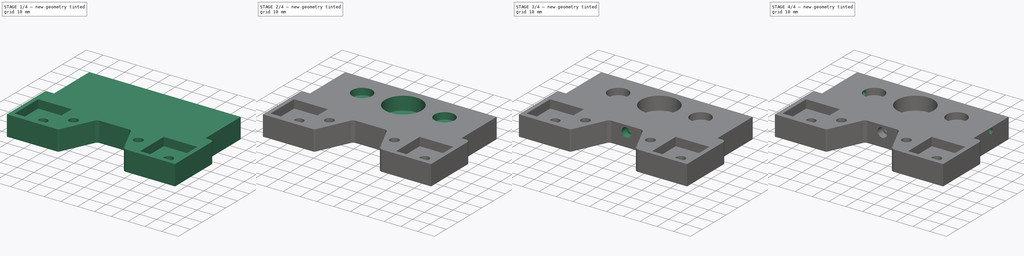
[diagram: build sequence overview — one tinted view per stage of 4, left to right]
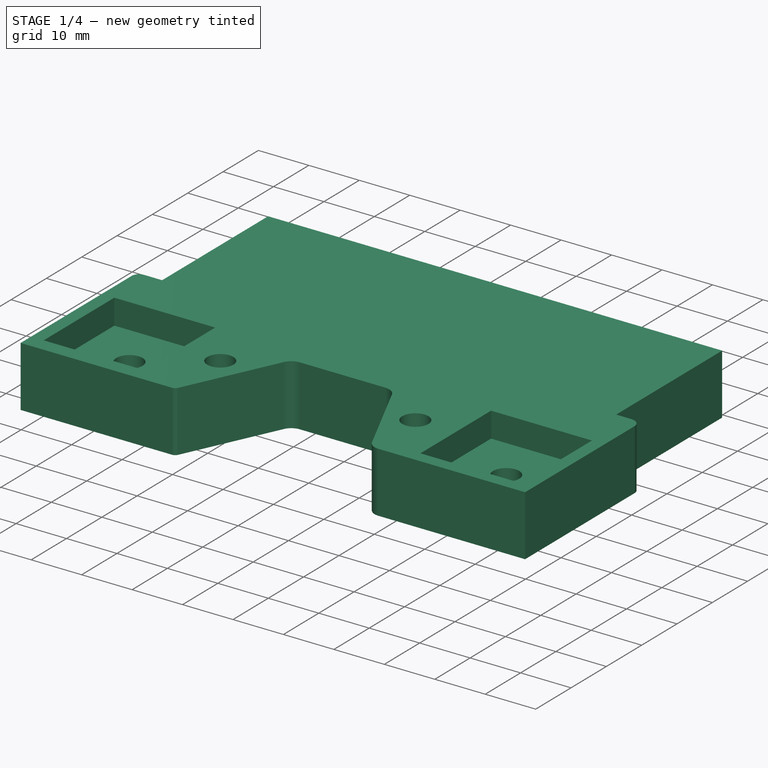
[diagram: stage 1 of 4 — iso view after this stage's code; geometry added in this stage tinted green]
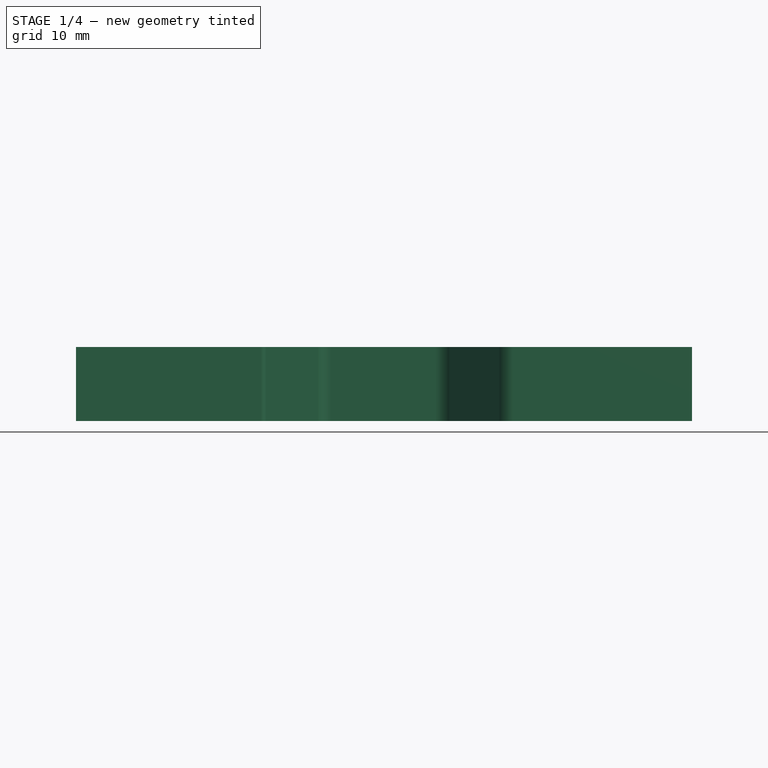
[diagram: stage 1 of 4 — front view after this stage's code; geometry added in this stage tinted green]
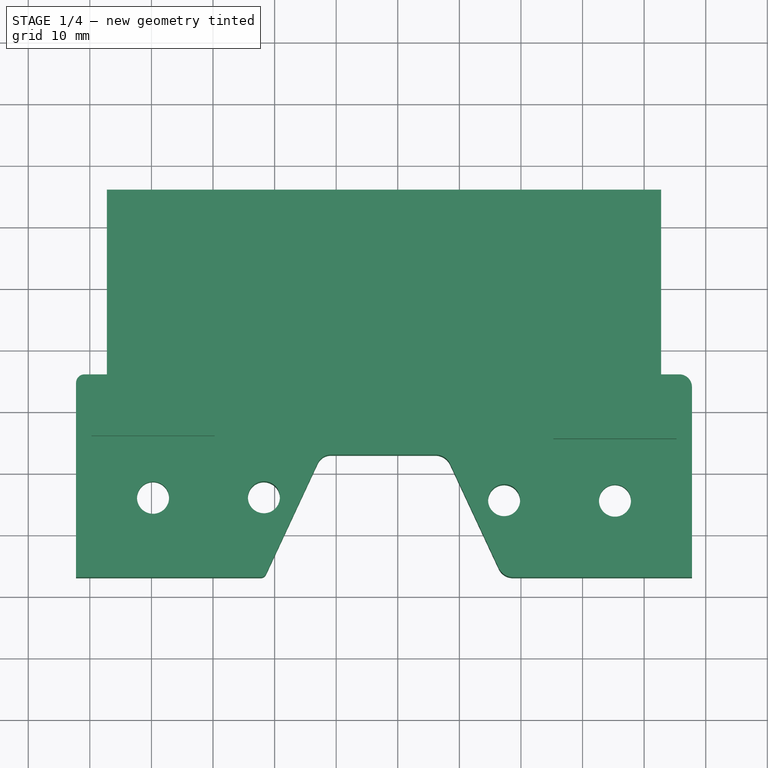
[diagram: stage 1 of 4 — top view after this stage's code; geometry added in this stage tinted green]
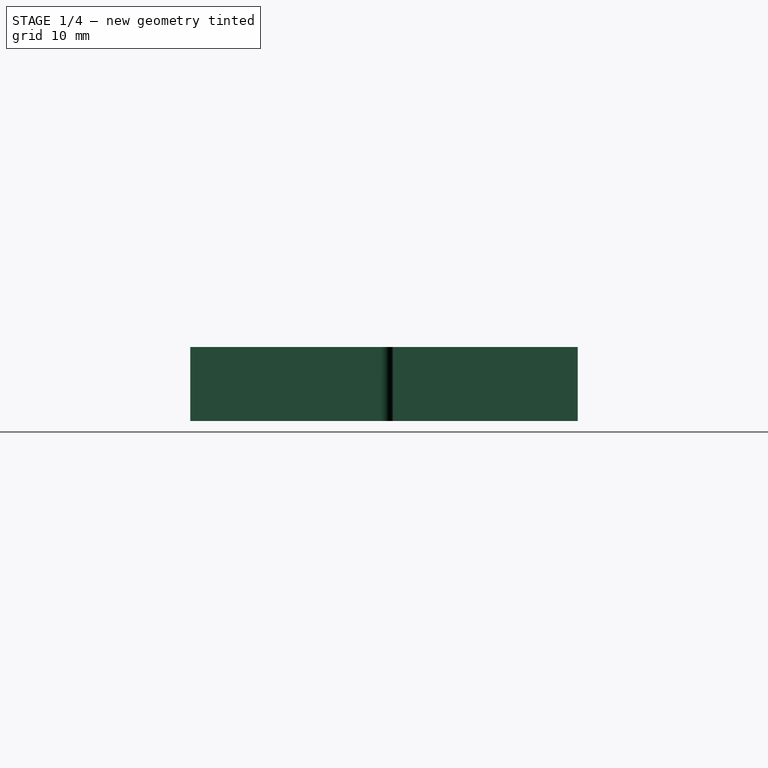
[diagram: stage 1 of 4 — right view after this stage's code; geometry added in this stage tinted green]
FCSTD DOCUMENT  (FreeCAD 0.18R4 (GitTag))
Label: support-y-buttom-v2
License: All rights reserved
LicenseURL: http://en.wikipedia.org/wiki/All_rights_reserved
objects: Sketcher::SketchObject×10, PartDesign::Pocket×9, PartDesign::Pad×1, PartDesign::Body×1
note: 31 computed .brp shape members not serialized (recipe doc carries the construction recipe); baked Part::Feature solids carry a one-line shape summary decoded from their .brp

FEATURE [Sketcher::SketchObject] Sketch
  MapMode = 5
  Support = -> [XY_Plane]
  sketch-geometry (36):
    g0: LineSegment StartX=-57.2375 StartY=55.9782 StartZ=0 EndX=32.7625 EndY=55.9782 EndZ=0
    g1: LineSegment StartX=32.7625 StartY=55.9782 StartZ=0 EndX=32.7625 EndY=25.9782 EndZ=0
    g2: LineSegment StartX=-57.2375 StartY=25.9782 StartZ=0 EndX=-57.2375 EndY=55.9782 EndZ=0
    g3: LineSegment [constr] StartX=-59.7375 StartY=16.0237 StartZ=0 EndX=-39.7375 EndY=16.0237 EndZ=0
    g4: LineSegment [constr] StartX=-39.7375 StartY=16.0237 StartZ=0 EndX=-39.7375 EndY=-3.97627 EndZ=0
    g5: LineSegment [constr] StartX=-39.7375 StartY=-3.97627 StartZ=0 EndX=-59.7375 EndY=-3.97627 EndZ=0
    g6: LineSegment [constr] StartX=-59.7375 StartY=-3.97627 StartZ=0 EndX=-59.7375 EndY=16.0237 EndZ=0
    g7: LineSegment [constr] StartX=15.2625 StartY=15.5512 StartZ=0 EndX=35.2625 EndY=15.5512 EndZ=0
    g8: LineSegment [constr] StartX=35.2625 StartY=15.5512 StartZ=0 EndX=35.2625 EndY=-4.44881 EndZ=0
    g9: LineSegment [constr] StartX=35.2625 StartY=-4.44881 StartZ=0 EndX=15.2625 EndY=-4.44881 EndZ=0
    g10: LineSegment [constr] StartX=15.2625 StartY=-4.44881 StartZ=0 EndX=15.2625 EndY=15.5512 EndZ=0
    g11: Circle CenterX=-49.7375 CenterY=6.02373 CenterZ=0 NormalX=0 NormalY=0 NormalZ=1 AngleXU=0 Radius=2.6
    g12: Circle CenterX=-31.7375 CenterY=6.02373 CenterZ=0 NormalX=0 NormalY=0 NormalZ=1 AngleXU=0 Radius=2.6
    g13: Circle CenterX=25.2625 CenterY=5.55119 CenterZ=0 NormalX=0 NormalY=0 NormalZ=1 AngleXU=0 Radius=2.6
    g14: Circle CenterX=7.26254 CenterY=5.55119 CenterZ=0 NormalX=0 NormalY=0 NormalZ=1 AngleXU=0 Radius=2.6
    g15: Circle [constr] CenterX=-12.2375 CenterY=40.9782 CenterZ=0 NormalX=0 NormalY=0 NormalZ=1 AngleXU=0 Radius=10.85
    g16: Circle [constr] CenterX=-36.7375 CenterY=40.9782 CenterZ=0 NormalX=0 NormalY=0 NormalZ=1 AngleXU=0 Radius=5.95
    g17: Circle [constr] CenterX=12.2625 CenterY=40.9782 CenterZ=0 NormalX=0 NormalY=0 NormalZ=1 AngleXU=0 Radius=5.95
    g18: LineSegment StartX=37.7625 StartY=23.9417 StartZ=0 EndX=37.7625 EndY=20.9782 EndZ=0
    g19: LineSegment StartX=-62.2375 StartY=17.4077 StartZ=0 EndX=-62.2375 EndY=24.5902 EndZ=0
    g20: LineSegment StartX=-60.8495 StartY=25.9782 StartZ=0 EndX=-57.2375 EndY=25.9782 EndZ=0
    g21: LineSegment StartX=32.7625 StartY=25.9782 StartZ=0 EndX=35.726 EndY=25.9782 EndZ=0
    g22: LineSegment StartX=-62.2375 StartY=17.4077 StartZ=0 EndX=-62.2375 EndY=-6.94881 EndZ=0
    g23: LineSegment StartX=-62.2375 StartY=-6.94881 StartZ=0 EndX=-32.2375 EndY=-6.94881 EndZ=0
    g24: LineSegment StartX=-31.3916 StartY=-6.40992 StartZ=0 EndX=-23.0034 EndY=11.5786 EndZ=0
    g25: LineSegment StartX=-20.8522 StartY=12.9491 StartZ=0 EndX=-3.89412 EndY=12.9491 EndZ=0
    g26: LineSegment StartX=-1.49691 StartY=11.4219 StartZ=0 EndX=6.36882 EndY=-5.44622 EndZ=0
    g27: LineSegment StartX=8.7274 StartY=-6.94881 StartZ=0 EndX=37.7625 EndY=-6.94881 EndZ=0
    g28: LineSegment StartX=37.7625 StartY=-6.94881 StartZ=0 EndX=37.7625 EndY=20.9782 EndZ=0
    g29: LineSegment [constr] StartX=-62.2375 StartY=-6.94881 StartZ=0 EndX=47.6711 EndY=-6.94881 EndZ=0
    g30: ArcOfCircle CenterX=-32.2375 CenterY=-6.01548 CenterZ=0 NormalX=0 NormalY=0 NormalZ=1 AngleXU=0 Radius=0.933329 StartAngle=4.71239 EndAngle=5.84685
    g31: ArcOfCircle CenterX=-20.8522 CenterY=10.5755 CenterZ=0 NormalX=0 NormalY=0 NormalZ=1 AngleXU=0 Radius=2.3736 StartAngle=1.5708 EndAngle=2.70526
    g32: ArcOfCircle CenterX=-3.89412 CenterY=10.304 CenterZ=0 NormalX=0 NormalY=0 NormalZ=1 AngleXU=0 Radius=2.64503 StartAngle=0.436332 EndAngle=1.5708
    g33: ArcOfCircle CenterX=8.7274 CenterY=-4.3464 CenterZ=0 NormalX=0 NormalY=0 NormalZ=1 AngleXU=0 Radius=2.60241 StartAngle=3.57792 EndAngle=4.71239
    g34: ArcOfCircle CenterX=35.726 CenterY=23.9417 CenterZ=0 NormalX=0 NormalY=0 NormalZ=1 AngleXU=0 Radius=2.03655 StartAngle=0 EndAngle=1.5708
    g35: ArcOfCircle CenterX=-60.8495 CenterY=24.5902 CenterZ=0 NormalX=0 NormalY=0 NormalZ=1 AngleXU=0 Radius=1.38797 StartAngle=1.5708 EndAngle=3.14159
  constraints (84):
    c: Coincident(g0,g1)
    c: Coincident(g2,g0)
    c: Horizontal(g0)
    c: Vertical(g1)
    c: Vertical(g2)
    c: DistanceX(g0,g0) = 90
    c: DistanceY(g1,g1) = 30
    c: Coincident(g3,g4)
    c: Coincident(g4,g5)
    c: Coincident(g5,g6)
    c: Coincident(g6,g3)
    c: Horizontal(g3)
    c: Horizontal(g5)
    c: Vertical(g4)
    c: Vertical(g6)
    c: Coincident(g7,g8)
    c: Coincident(g8,g9)
    c: Coincident(g9,g10)
    c: Coincident(g10,g7)
    c: Horizontal(g7)
    c: Horizontal(g9)
    c: Vertical(g8)
    c: Vertical(g10)
    c: Equal(g3,g4)
    c: Equal(g4,g7)
    c: Equal(g7,g8)
    c: DistanceY(g8,g8) = 20
    c: Equal(g11,g13)
    c: DistanceY(g11,g3) = 10
    c: DistanceY(g13,g7) = 10
    c: DistanceX(g3,g11) = 10
    c: DistanceX(g7,g13) = 10
    c: DistanceX(g3,g12) = 8
    c: Diameter(g11) = 5.2
    c: DistanceY(g12,g11) = 0
    c: DistanceY(g13,g14) = 0
    c: Equal(g14,g11)
    c: DistanceX(g0,g15) = 45
    c: DistanceY(g15,g0) = 15
    c: DistanceY(g16,g0) = 15
    c: DistanceY(g17,g0) = 15
    c: DistanceX(g16,g15) = 24.5
    c: DistanceX(g15,g17) = 24.5
    c: Equal(g16,g17)
    c: Diameter(g16) = 11.9
    c: Diameter(g15) = 21.7
    c: Vertical(g18)
    c: Vertical(g19)
    c: DistanceX(g19,g18) = 100
    c: Coincident(g20,g2)
    c: Coincident(g21,g1)
    c: Horizontal(g21)
    c: DistanceX(g7,g18) = 2.5
    c: DistanceX(g14,g7) = 8
    c: Coincident(g22,g23)
    c: Coincident(g27,g28)
    c: Coincident(g28,g18)
    c: Vertical(g22)
    c: Vertical(g28)
    c: Horizontal(g27)
    c: Horizontal(g23)
    c: DistanceY(g27,g8) = 2.5
    c: Equal(g23,g2)
    c: Equal(g2,g1)
    c: Horizontal(g25)
    c: Coincident(g22,g19)
    c: Angle(g24,g23) = 2.00713
    c: Angle(g27,g26) = 2.00713
    c: DistanceX(g19,g3) = 2.5
    c: Horizontal(g29)
    c: Tangent(g23,g30) = -1.5708
    c: Tangent(g24,g30) = -1.5708
    c: Tangent(g24,g31) = 1.5708
    c: Tangent(g25,g31) = 1.5708
    c: Tangent(g25,g32) = 1.5708
    c: Tangent(g26,g32) = 1.5708
    c: Tangent(g26,g33) = -1.5708
    c: Tangent(g27,g33) = -1.5708
    c: PointOnObject(g27,g29)
    c: Coincident(g29,g22)
    c: Tangent(g21,g34) = 1.5708
    c: Tangent(g18,g34) = 1.5708
    c: Tangent(g20,g35) = 1.5708
    c: Tangent(g19,g35) = 1.5708
FEATURE [PartDesign::Pad] Pad
  Length = 12
  Length2 = 100
  Profile = -> Sketch
  Type = 0
FEATURE [Sketcher::SketchObject] Sketch001
  ExternalGeometry = -> [Pad]
  MapMode = 5
  Placement = pos=(0,0,12) rot=(0,0,1;0rad)
  Support = -> [Pad]
  sketch-geometry (8):
    g0: LineSegment StartX=-59.7375 StartY=16.0237 StartZ=0 EndX=-39.7375 EndY=16.0237 EndZ=0
    g1: LineSegment StartX=-39.7375 StartY=16.0237 StartZ=0 EndX=-39.7375 EndY=-3.97627 EndZ=0
    g2: LineSegment StartX=-39.7375 StartY=-3.97627 StartZ=0 EndX=-59.7375 EndY=-3.97627 EndZ=0
    g3: LineSegment StartX=-59.7375 StartY=-3.97627 StartZ=0 EndX=-59.7375 EndY=16.0237 EndZ=0
    g4: LineSegment StartX=15.2625 StartY=15.5512 StartZ=0 EndX=35.2625 EndY=15.5512 EndZ=0
    g5: LineSegment StartX=35.2625 StartY=15.5512 StartZ=0 EndX=35.2625 EndY=-4.44881 EndZ=0
    g6: LineSegment StartX=35.2625 StartY=-4.44881 StartZ=0 EndX=15.2625 EndY=-4.44881 EndZ=0
    g7: LineSegment StartX=15.2625 StartY=-4.44881 StartZ=0 EndX=15.2625 EndY=15.5512 EndZ=0
  constraints (22):
    c: Coincident(g0,g1)
    c: Coincident(g1,g2)
    c: Coincident(g2,g3)
    c: Coincident(g3,g0)
    c: Horizontal(g0)
    c: Horizontal(g2)
    c: Vertical(g1)
    c: Vertical(g3)
    c: Coincident(g4,g5)
    c: Coincident(g5,g6)
    c: Coincident(g6,g7)
    c: Coincident(g7,g4)
    c: Horizontal(g4)
    c: Horizontal(g6)
    c: Vertical(g5)
    c: Vertical(g7)
    c: Equal(g0,g1)
    c: Equal(g1,g4)
    c: Equal(g4,g5)
    c: DistanceY(g5,g5) = 20
    c: Symmetric(g2,g0,g-3)
    c: Symmetric(g5,g4,g-4)
FEATURE [PartDesign::Pocket] Pocket
  BaseFeature = -> Pad
  Length = 5
  Length2 = 100
  Profile = -> Sketch001
  Type = 0
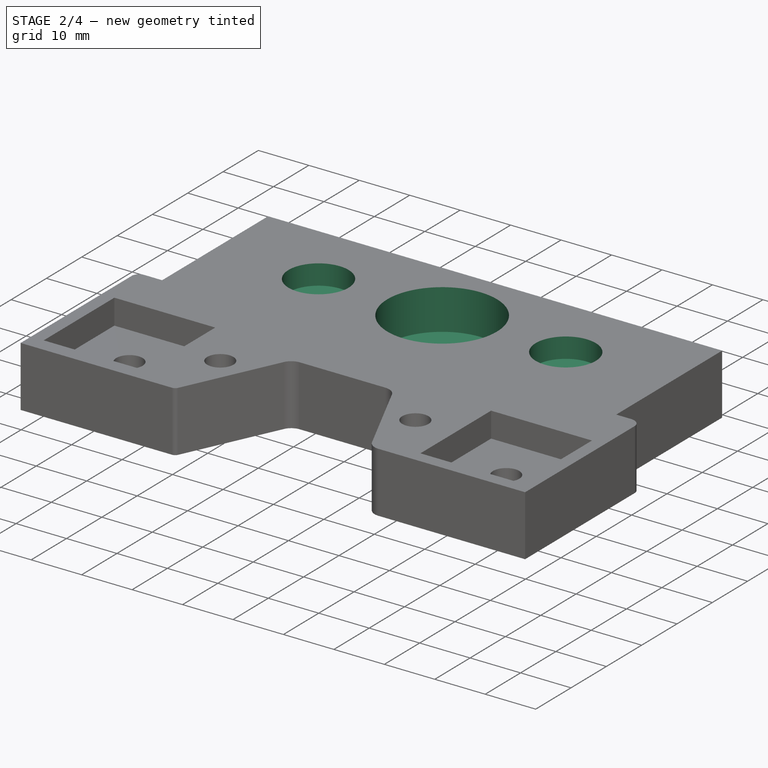
[diagram: stage 2 of 4 — iso view after this stage's code; geometry added in this stage tinted green]
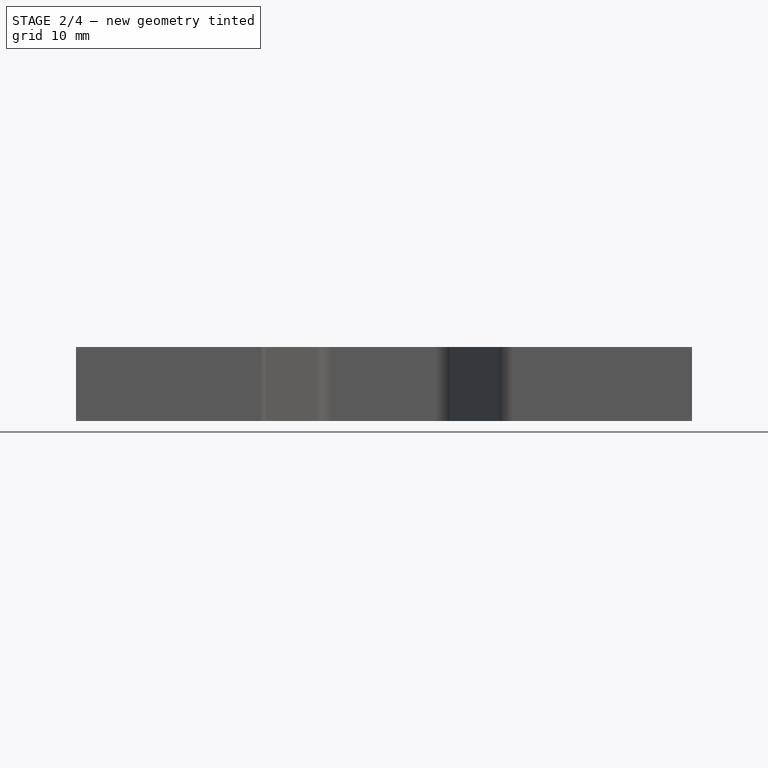
[diagram: stage 2 of 4 — front view after this stage's code; geometry added in this stage tinted green]
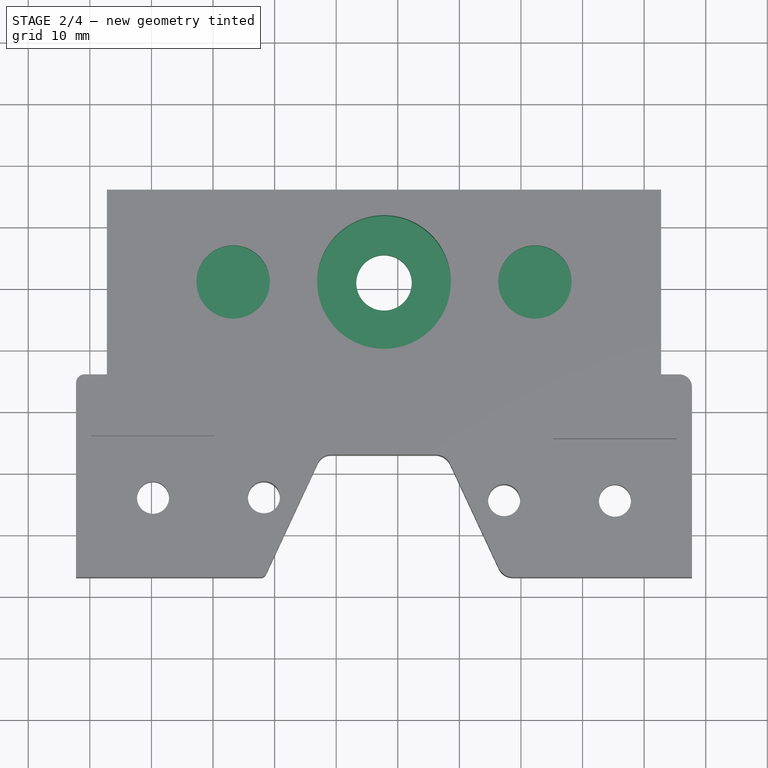
[diagram: stage 2 of 4 — top view after this stage's code; geometry added in this stage tinted green]
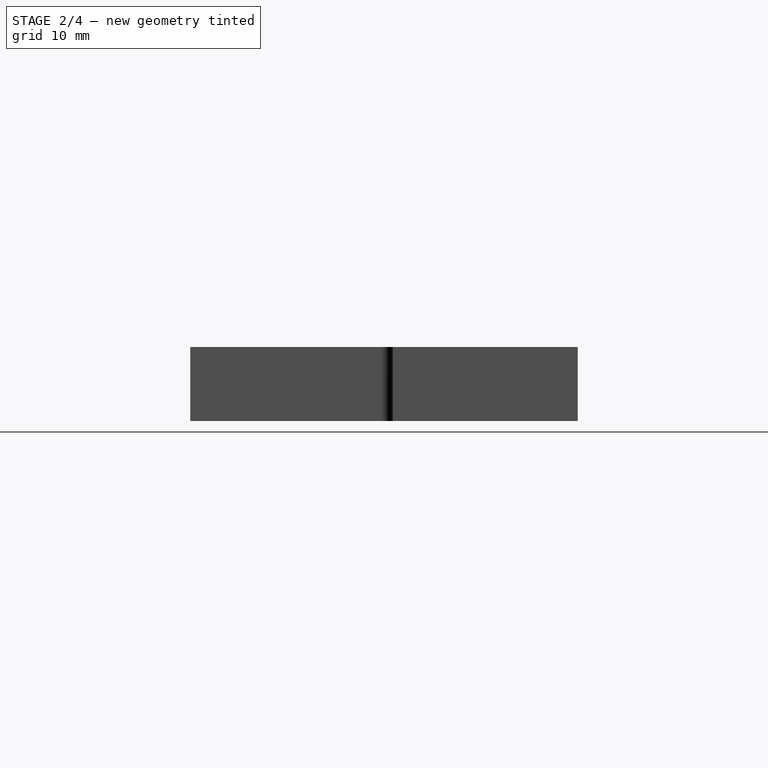
[diagram: stage 2 of 4 — right view after this stage's code; geometry added in this stage tinted green]
FEATURE [Sketcher::SketchObject] Sketch002
  ExternalGeometry = -> [Pocket]
  MapMode = 5
  Placement = pos=(0,0,12) rot=(0,0,1;0rad)
  Support = -> [Pocket]
  sketch-geometry (1):
    g0: Circle CenterX=-12.2375 CenterY=40.9782 CenterZ=0 NormalX=0 NormalY=0 NormalZ=1 AngleXU=0 Radius=4.5
  constraints (3):
    c: DistanceX(g-4,g0) = 45
    c: DistanceY(g0,g-4) = 15
    c: Diameter(g0) = 9
FEATURE [PartDesign::Pocket] Pocket001
  BaseFeature = -> Pocket
  Length = 12
  Length2 = 100
  Profile = -> Sketch002
  Type = 0
FEATURE [Sketcher::SketchObject] Sketch003
  ExternalGeometry = -> [Pocket001]
  MapMode = 5
  Placement = pos=(0,0,12) rot=(0,0,1;0rad)
  Support = -> [Pocket001]
  sketch-geometry (1):
    g0: Circle CenterX=-12.2375 CenterY=40.9782 CenterZ=0 NormalX=0 NormalY=0 NormalZ=1 AngleXU=0 Radius=10.85
  constraints (2):
    c: Coincident(g0,g-5)
    c: Diameter(g0) = 21.7
FEATURE [PartDesign::Pocket] Pocket002
  BaseFeature = -> Pocket001
  Length = 8
  Length2 = 100
  Profile = -> Sketch003
  Type = 0
FEATURE [Sketcher::SketchObject] Sketch004
  ExternalGeometry = -> [Pocket002]
  MapMode = 5
  Placement = pos=(0,0,12) rot=(0,0,1;0rad)
  Support = -> [Pocket002]
  sketch-geometry (2):
    g0: Circle CenterX=-36.7375 CenterY=40.9782 CenterZ=0 NormalX=0 NormalY=0 NormalZ=1 AngleXU=0 Radius=5.95
    g1: Circle CenterX=12.2625 CenterY=40.9782 CenterZ=0 NormalX=0 NormalY=0 NormalZ=1 AngleXU=0 Radius=5.95
  constraints (6):
    c: DistanceX(g-3,g1) = 24.5
    c: DistanceX(g0,g-3) = 24.5
    c: DistanceY(g0,g-5) = 15
    c: DistanceY(g1,g-5) = 15
    c: Equal(g0,g1)
    c: Diameter(g1) = 11.9
FEATURE [PartDesign::Pocket] Pocket003
  BaseFeature = -> Pocket002
  Length = 4
  Length2 = 100
  Profile = -> Sketch004
  Type = 0
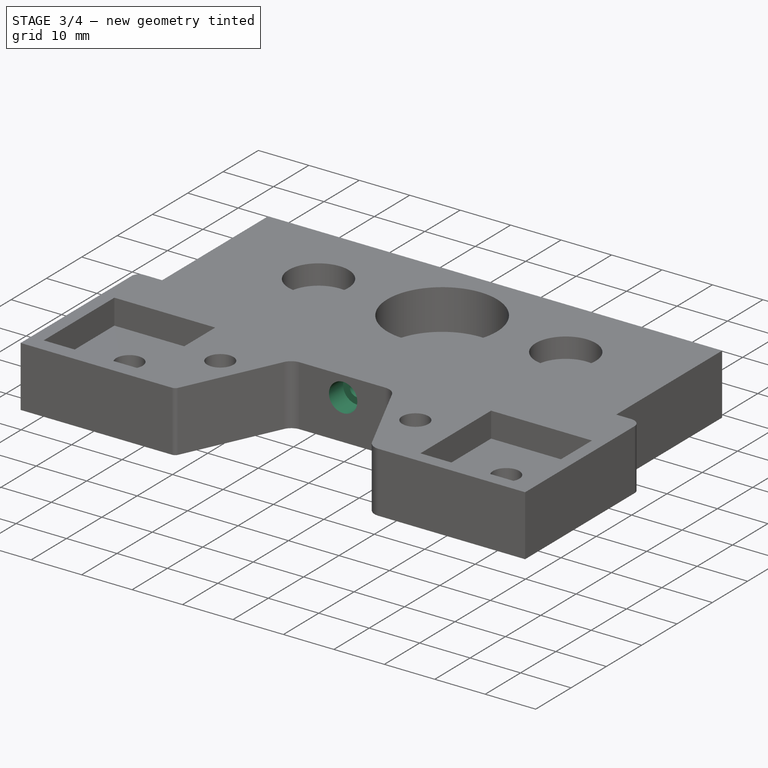
[diagram: stage 3 of 4 — iso view after this stage's code; geometry added in this stage tinted green]
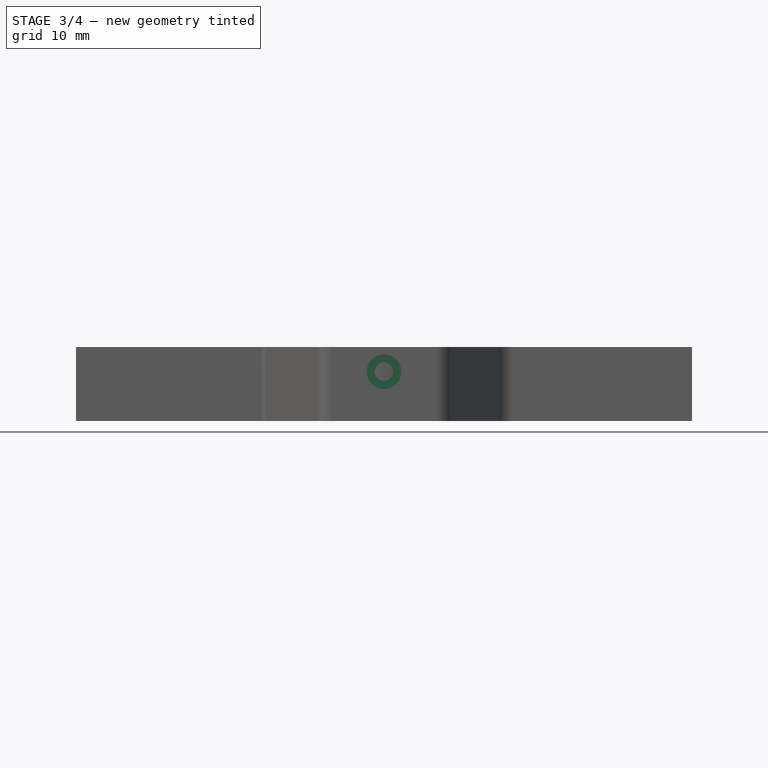
[diagram: stage 3 of 4 — front view after this stage's code; geometry added in this stage tinted green]
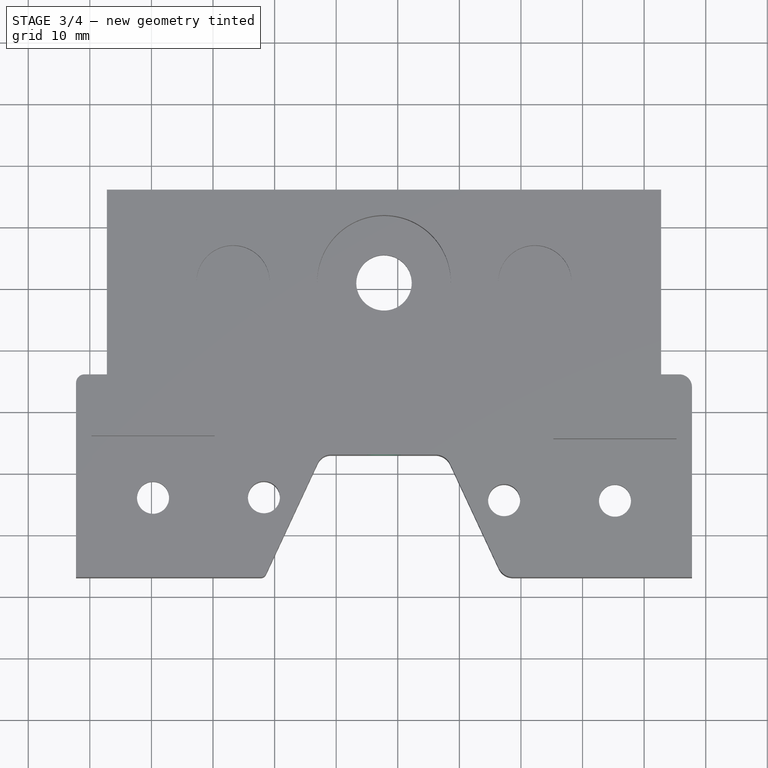
[diagram: stage 3 of 4 — top view after this stage's code; geometry added in this stage tinted green]
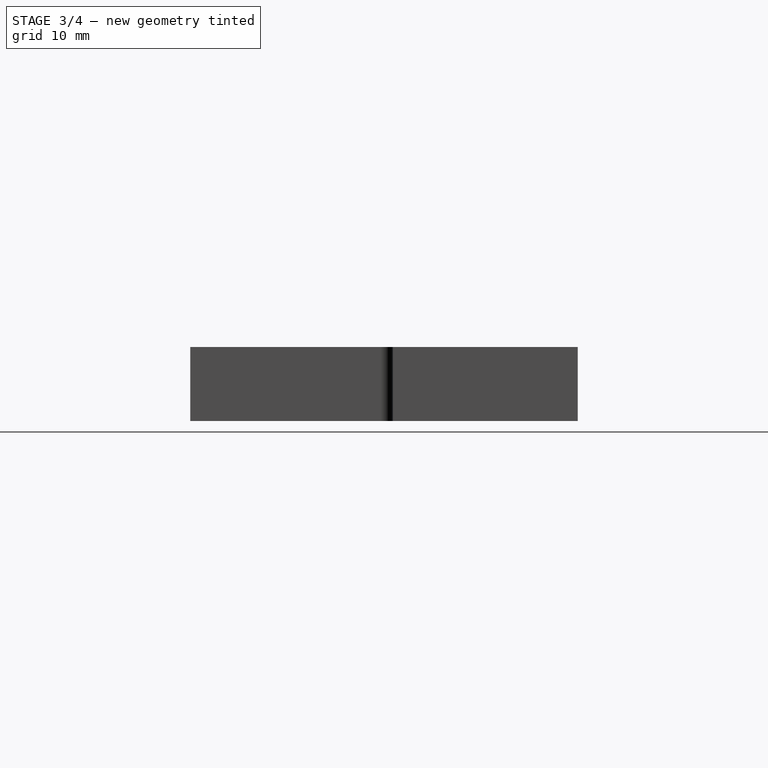
[diagram: stage 3 of 4 — right view after this stage's code; geometry added in this stage tinted green]
FEATURE [Sketcher::SketchObject] Sketch005
  ExternalGeometry = -> [Pocket003]
  MapMode = 5
  Placement = pos=(0,12.9491,0) rot=(1,0,0;1.5708rad)
  Support = -> [Pocket003]
  sketch-geometry (1):
    g0: Circle CenterX=-12.2375 CenterY=8 CenterZ=0 NormalX=0 NormalY=0 NormalZ=1 AngleXU=0 Radius=1.5
  constraints (3):
    c: DistanceX(g-6,g0) = 45
    c: DistanceY(g0,g-3) = 4
    c: Diameter(g0) = 3
FEATURE [PartDesign::Pocket] Pocket004
  BaseFeature = -> Pocket003
  Length = 19
  Length2 = 100
  Profile = -> Sketch005
  Type = 0
FEATURE [Sketcher::SketchObject] Sketch006
  ExternalGeometry = -> [Pocket004]
  MapMode = 5
  Placement = pos=(0,12.9491,0) rot=(1,0,0;1.5708rad)
  Support = -> [Pocket004]
  sketch-geometry (1):
    g0: Circle CenterX=-12.2375 CenterY=8 CenterZ=0 NormalX=0 NormalY=0 NormalZ=1 AngleXU=0 Radius=2.81121
  constraints (1):
    c: Coincident(g0,g-3)
FEATURE [PartDesign::Pocket] Pocket005
  BaseFeature = -> Pocket004
  Length = 4
  Length2 = 100
  Profile = -> Sketch006
  Type = 0
FEATURE [Sketcher::SketchObject] Sketch007
  ExternalGeometry = -> [Pocket005]
  MapMode = 5
  Placement = pos=(0,0,0) rot=(1,0,0;3.14159rad)
  Support = -> [Pocket005]
  sketch-geometry (4):
    g0: Circle CenterX=-49.7375 CenterY=-6.02373 CenterZ=0 NormalX=0 NormalY=0 NormalZ=1 AngleXU=0 Radius=4
    g1: Circle CenterX=-31.7375 CenterY=-6.02373 CenterZ=0 NormalX=0 NormalY=0 NormalZ=1 AngleXU=0 Radius=4
    g2: Circle CenterX=7.26254 CenterY=-5.55119 CenterZ=0 NormalX=0 NormalY=0 NormalZ=1 AngleXU=0 Radius=4
    g3: Circle CenterX=25.2625 CenterY=-5.55119 CenterZ=0 NormalX=0 NormalY=0 NormalZ=1 AngleXU=0 Radius=4
  constraints (8):
    c: Equal(g0,g1)
    c: Equal(g1,g2)
    c: Equal(g2,g3)
    c: Coincident(g0,g-3)
    c: Coincident(g1,g-4)
    c: Coincident(g2,g-5)
    c: Coincident(g-6,g3)
    c: Diameter(g3) = 8
FEATURE [PartDesign::Pocket] Pocket006
  BaseFeature = -> Pocket005
  Length = 3
  Length2 = 100
  Profile = -> Sketch007
  Type = 0
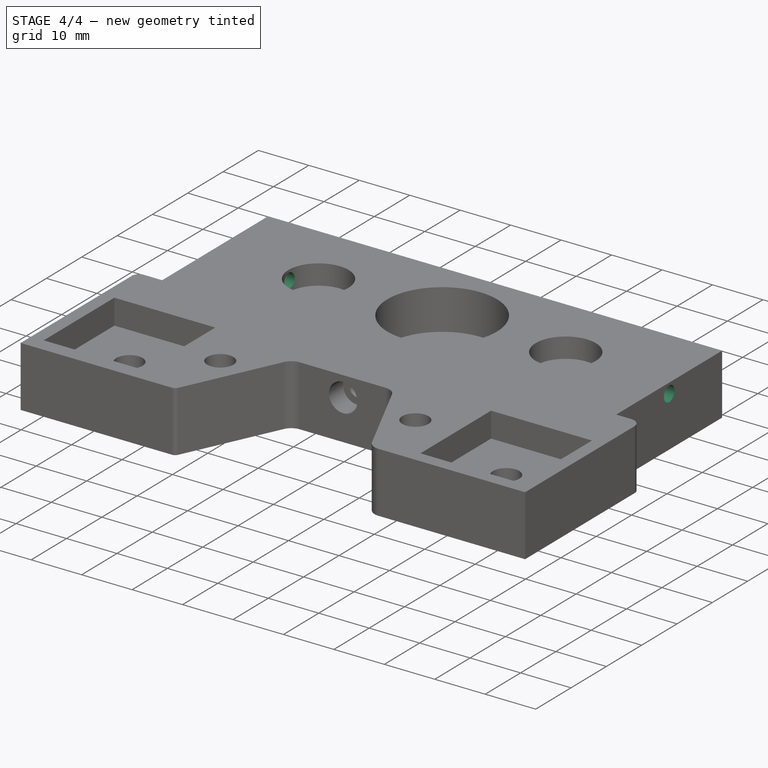
[diagram: stage 4 of 4 — iso view after this stage's code; geometry added in this stage tinted green]
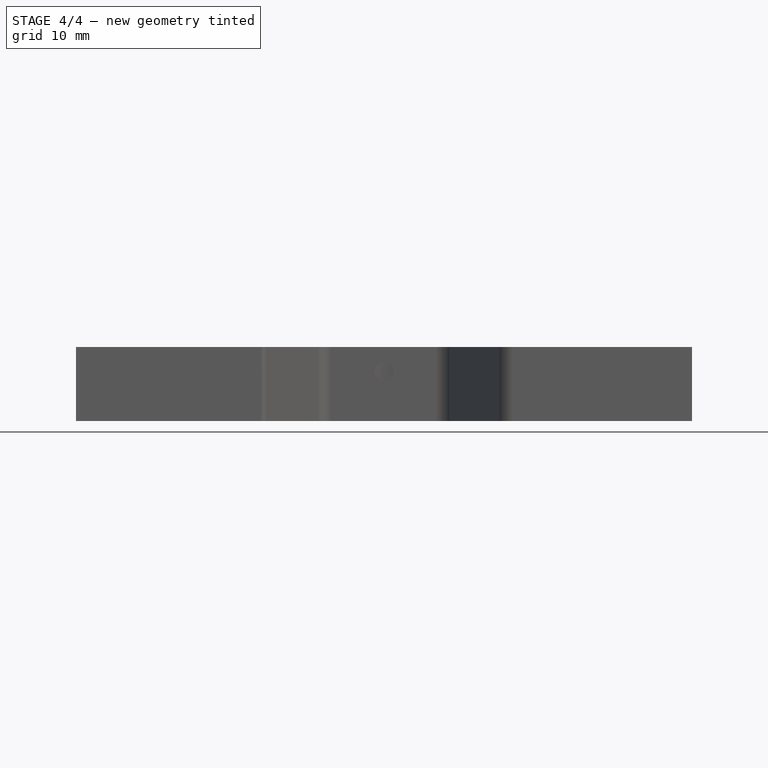
[diagram: stage 4 of 4 — front view after this stage's code; geometry added in this stage tinted green]
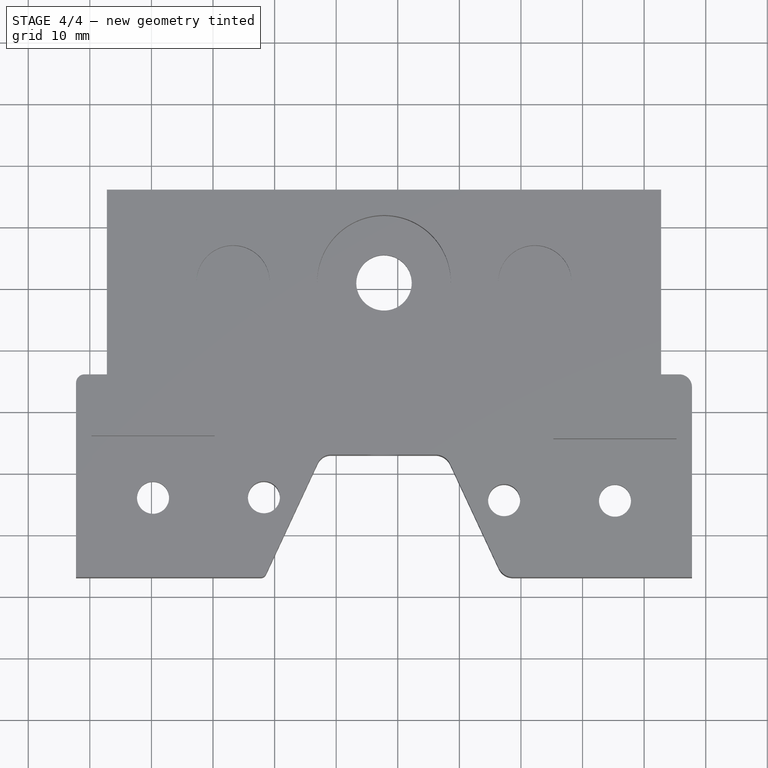
[diagram: stage 4 of 4 — top view after this stage's code; geometry added in this stage tinted green]
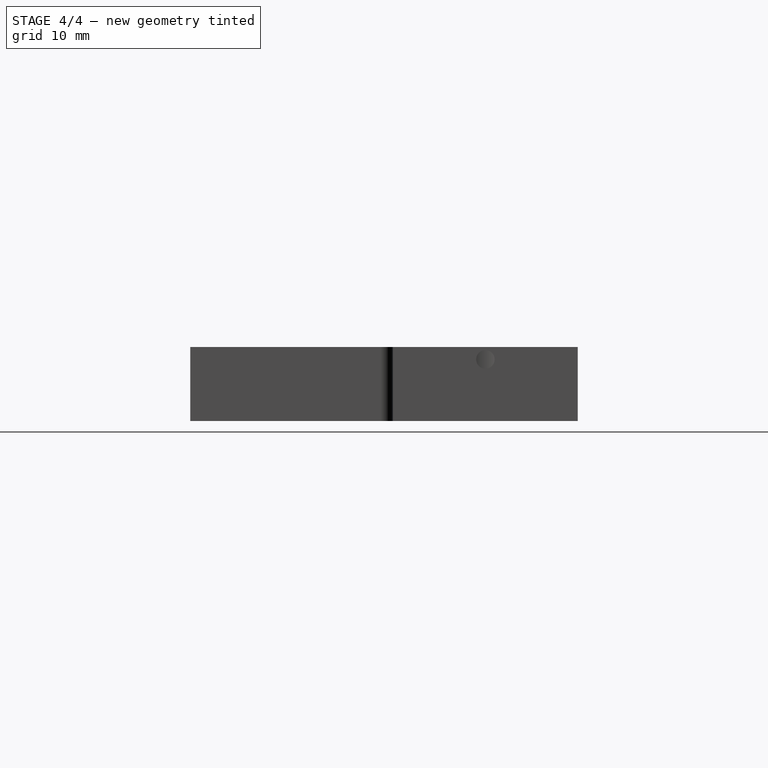
[diagram: stage 4 of 4 — right view after this stage's code; geometry added in this stage tinted green]
FEATURE [Sketcher::SketchObject] Sketch008
  ExternalGeometry = -> [Pocket006]
  MapMode = 5
  Placement = pos=(32.7625,0,0) rot=(0.57735,0.57735,0.57735;2.0944rad)
  Support = -> [Pocket006]
  sketch-geometry (1):
    g0: Circle CenterX=40.9782 CenterY=10 CenterZ=0 NormalX=0 NormalY=0 NormalZ=1 AngleXU=0 Radius=1.5
  constraints (3):
    c: Diameter(g0) = 3
    c: DistanceX(g-3,g0) = 15
    c: DistanceY(g0,g-3) = 2
FEATURE [PartDesign::Pocket] Pocket007
  BaseFeature = -> Pocket006
  Length = 16
  Length2 = 100
  Profile = -> Sketch008
  Type = 0
FEATURE [Sketcher::SketchObject] Sketch009
  ExternalGeometry = -> [Pocket007]
  MapMode = 5
  Placement = pos=(-57.2375,0,0) rot=(0.57735,-0.57735,-0.57735;2.0944rad)
  Support = -> [Pocket007]
  sketch-geometry (1):
    g0: Circle CenterX=-40.9782 CenterY=10 CenterZ=0 NormalX=0 NormalY=0 NormalZ=1 AngleXU=0 Radius=1.5
  constraints (3):
    c: Diameter(g0) = 3
    c: DistanceX(g-3,g0) = 15
    c: DistanceY(g0,g-3) = 2
FEATURE [PartDesign::Pocket] Pocket008
  BaseFeature = -> Pocket007
  Length = 16
  Length2 = 100
  Profile = -> Sketch009
  Type = 0
FEATURE [PartDesign::Body] Body
  Group = -> [Sketch,Pad,Sketch001,Pocket,Sketch002,Pocket001,Sketch003,Pocket002,Sketch004,Pocket003,Sketch005,Pocket004,Sketch006,Pocket005,Sketch007,Pocket006,Sketch008,Pocket007,Sketch009,Pocket008]
  Origin = -> Origin
  Tip = -> Pocket008
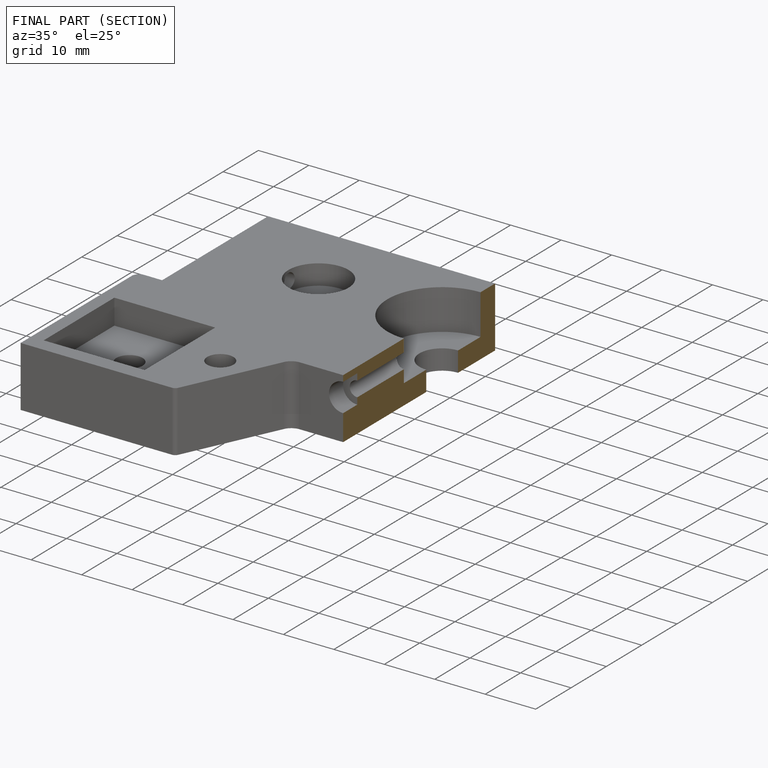
[diagram: finished part — half-section view (interior)]
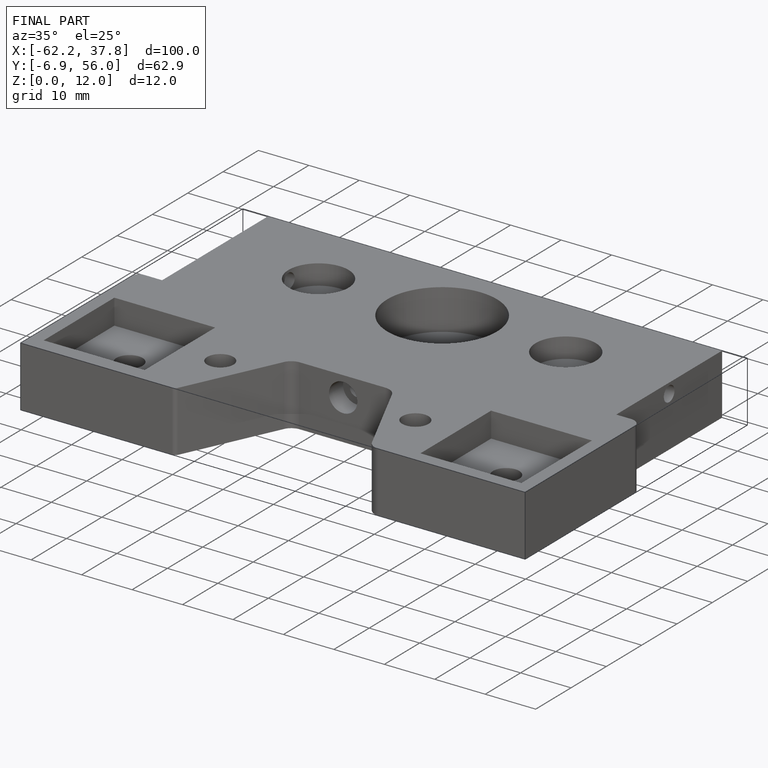
[diagram: finished part — iso view with bounding-box wireframe]
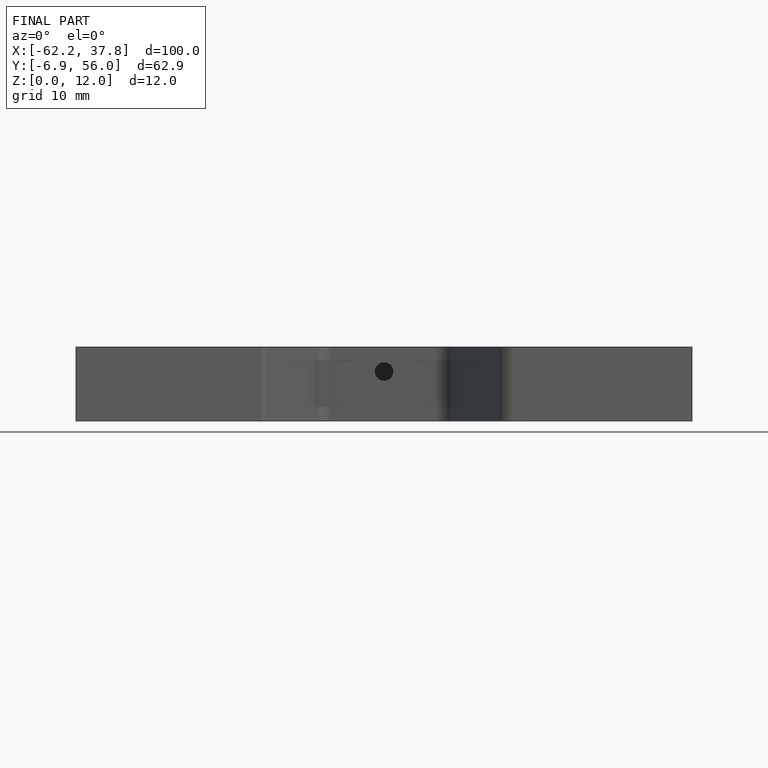
[diagram: finished part — front view with bounding-box wireframe]
